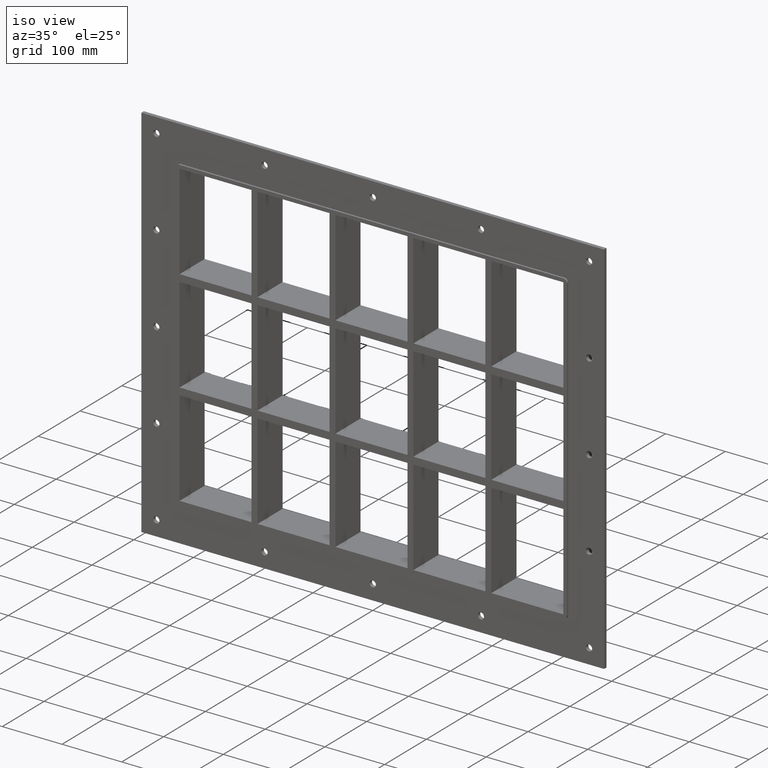
[diagram: clean part render]
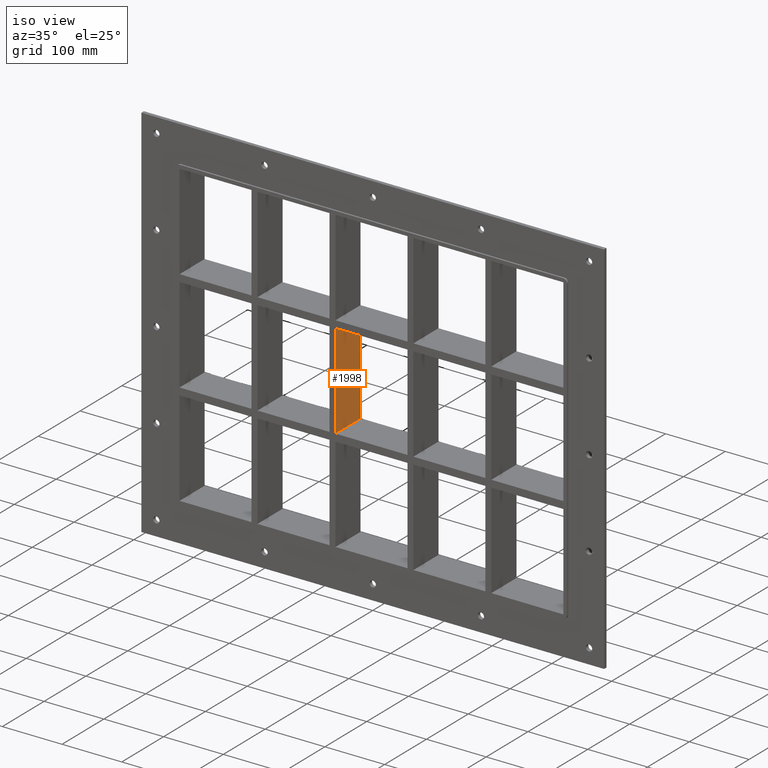
[diagram: same view with one face highlighted and labeled with its STEP entity id]
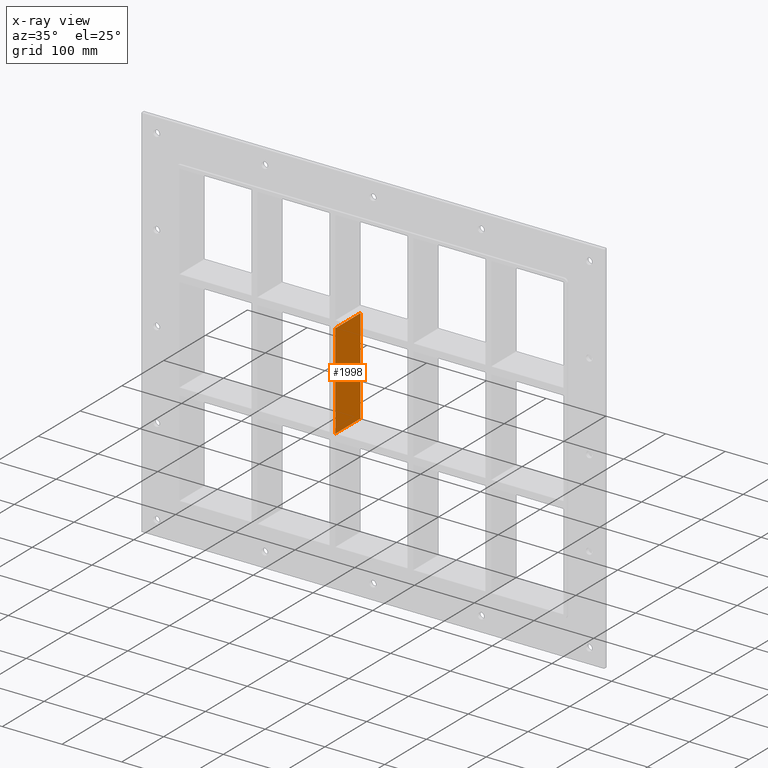
[diagram: x-ray of the same camera — body ghosted, the highlighted face saturated]
A machine part, iso view. The second image highlights one B-rep face of the part: STEP entity #1998.
The next image is the same camera in x-ray: the body ghosted, the highlighted face saturated — about 0% of this face is hidden behind the body in this view.
In plain terms, the highlighted planar face has unit normal (1, 0, 0).
Its self-contained STEP definition (entity closure, byte-faithful):
#611=CARTESIAN_POINT('',(-60.250000000007304,-3.0,79.74999999998974));
#612=VERTEX_POINT('',#611);
#619=CARTESIAN_POINT('',(-60.250000000007304,57.0,79.74999999998974));
#620=VERTEX_POINT('',#619);
#621=CARTESIAN_POINT('',(-60.250000000007269,57.0,79.749999999989768));
#622=DIRECTION('',(0.0,-1.0,0.0));
#623=VECTOR('',#622,60.0);
#624=LINE('',#621,#623);
#625=EDGE_CURVE('',#620,#612,#624,.T.);
#1469=CARTESIAN_POINT('',(-60.250000000007269,57.0,-79.749999999999972));
#1470=VERTEX_POINT('',#1469);
#1471=CARTESIAN_POINT('',(-60.250000000007269,57.0,79.74999999998974));
#1472=DIRECTION('',(0.0,0.0,-1.0));
#1473=VECTOR('',#1472,159.49999999998971);
#1474=LINE('',#1471,#1473);
#1475=EDGE_CURVE('',#620,#1470,#1474,.T.);
#1975=CARTESIAN_POINT('',(-60.250000000007269,-3.0,251.24999999999997));
#1976=DIRECTION('',(1.0,0.0,0.0));
#1977=DIRECTION('',(0.0,0.0,-1.0));
#1978=AXIS2_PLACEMENT_3D('',#1975,#1976,#1977);
#1979=PLANE('',#1978);
#1980=ORIENTED_EDGE('',*,*,#625,.T.);
#1981=CARTESIAN_POINT('',(-60.250000000007269,-3.0,-79.749999999999972));
#1982=VERTEX_POINT('',#1981);
#1983=CARTESIAN_POINT('',(-60.250000000007269,-3.0,79.74999999998974));
#1984=DIRECTION('',(0.0,0.0,-1.0));
#1985=VECTOR('',#1984,159.49999999998971);
#1986=LINE('',#1983,#1985);
#1987=EDGE_CURVE('',#612,#1982,#1986,.T.);
#1988=ORIENTED_EDGE('',*,*,#1987,.T.);
#1989=CARTESIAN_POINT('',(-60.250000000007248,57.0,-79.749999999999957));
#1990=DIRECTION('',(0.0,-1.0,0.0));
#1991=VECTOR('',#1990,60.0);
#1992=LINE('',#1989,#1991);
#1993=EDGE_CURVE('',#1470,#1982,#1992,.T.);
#1994=ORIENTED_EDGE('',*,*,#1993,.F.);
#1995=ORIENTED_EDGE('',*,*,#1475,.F.);
#1996=EDGE_LOOP('',(#1980,#1988,#1994,#1995));
#1997=FACE_OUTER_BOUND('',#1996,.T.);
#1998=ADVANCED_FACE('',(#1997),#1979,.T.);